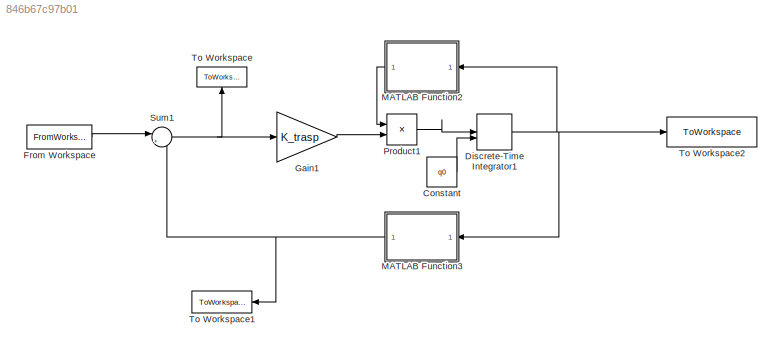
MODEL slx_846b67c97b01
KIND model
CONFIG AbsTol = auto
CONFIG EnableMultiTasking = off
CONFIG FixedStep = auto
CONFIG MaxStep = auto
CONFIG MinStep = auto
CONFIG RelTol = 1e-3
CONFIG SampleTimeConstraint = Unconstrained
CONFIG SolverName = VariableStepAuto
CONFIG StartTime = 0.0
CONFIG StopTime = 50
BLOCK [Constant] Constant
  Value = q0
BLOCK [DiscreteIntegrator] Discrete-Time Integrator1
  ICPrevOutput = DiscIntNeverNeededParam
  ICPrevScaledInput = DiscIntNeverNeededParam
  InitialCondition = q0
  InitialConditionSetting = Auto
  InitialConditionSource = external
  SampleTime = Tc
BLOCK [FromWorkspace] From Workspace
  SampleTime = Tc
  VariableName = xd
BLOCK [Gain] Gain1
  Gain = K_trasp
  Multiplication = Matrix(K*u) (u vector)
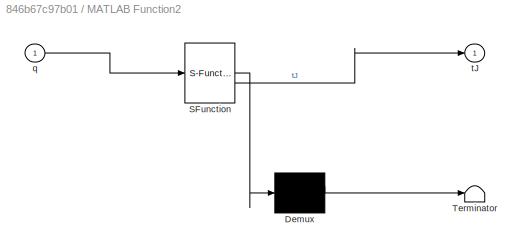
BLOCK [SubSystem] MATLAB Function2
  ErrorFcn = Stateflow.Translate.translate
  NameLocation = top
  PermitHierarchicalResolution = ExplicitOnly
  SFBlockType = MATLAB Function
  TreatAsAtomicUnit = on
BLOCK [Demux] MATLAB Function2/ Demux 
  Outputs = 1
BLOCK [S-Function] MATLAB Function2/ SFunction 
  EnableBusSupport = on
  FunctionName = sf_sfun
  PortCounts = [1 2]
  SFcnIsStateOwnerBlock = off
  SFunctionDeploymentMode = off
  Tag = Stateflow S-Function 3
BLOCK [Terminator] MATLAB Function2/ Terminator 
BLOCK [Inport] MATLAB Function2/q
BLOCK [Outport] MATLAB Function2/tJ
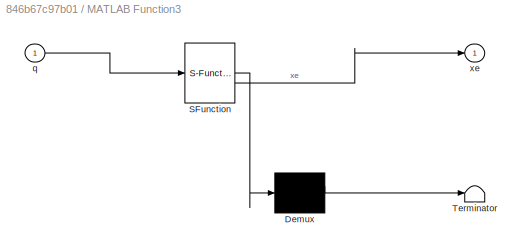
BLOCK [SubSystem] MATLAB Function3
  ErrorFcn = Stateflow.Translate.translate
  NameLocation = top
  PermitHierarchicalResolution = ExplicitOnly
  SFBlockType = MATLAB Function
  TreatAsAtomicUnit = on
BLOCK [Demux] MATLAB Function3/ Demux 
  Outputs = 1
BLOCK [S-Function] MATLAB Function3/ SFunction 
  EnableBusSupport = on
  FunctionName = sf_sfun
  PortCounts = [1 2]
  SFcnIsStateOwnerBlock = off
  SFunctionDeploymentMode = off
  Tag = Stateflow S-Function 4
BLOCK [Terminator] MATLAB Function3/ Terminator 
BLOCK [Inport] MATLAB Function3/q
BLOCK [Outport] MATLAB Function3/xe
BLOCK [Product] Product1
  Multiplication = Matrix(*)
BLOCK [Sum] Sum1
  Inputs = |+-
BLOCK [ToWorkspace] To Workspace
  FixptAsFi = on
  MaxDataPoints = inf
  NameLocation = right
  SampleTime = -1
  SaveFormat = Structure With Time
  VariableName = e_trasp
BLOCK [ToWorkspace] To Workspace1
  FixptAsFi = on
  MaxDataPoints = inf
  SampleTime = -1
  SaveFormat = Structure With Time
  VariableName = xe_trasp
BLOCK [ToWorkspace] To Workspace2
  FixptAsFi = on
  MaxDataPoints = inf
  SampleTime = -1
  SaveFormat = Structure With Time
  VariableName = q_trasp
LINE Constant:1 -> Discrete-Time Integrator1:2
NET Discrete-Time Integrator1:1 -> MATLAB Function2:1, MATLAB Function3:1, To Workspace2:1
LINE From Workspace:1 -> Sum1:1
LINE Gain1:1 -> Product1:2
LINE MATLAB Function2:1 -> Product1:1
NET MATLAB Function3:1 -> Sum1:2, To Workspace1:1
LINE Product1:1 -> Discrete-Time Integrator1:1
NET Sum1:1 -> Gain1:1, To Workspace:1
note: NET lines group one-source signal fan-out (src -> all destinations, sorted); 1:1 wires keep LINE
CHART MATLAB Function3 states=1 transitions=1
  STATE_LABEL 'eML_blk_kernel()'
  STATE_LABEL 'SCRIPT:\nfunction xe = dirkin(q)\na1=0.5;\na2=a1;\nd0=1;\n\n\nxe=[a1*cos(q(1))+a2*cos(q(1)+q(2));...\n    a1*sin(q(1))+a2*sin(q(1)+q(2));...\n    d0+q(3);...\n    q(1)+q(2)+q(4)];\nend\n'
CHART MATLAB Function2 states=1 transitions=1
  STATE_LABEL 'eML_blk_kernel()'
  STATE_LABEL "SCRIPT:\nfunction tJ=trasposta(q)\na1=0.5;\na2=a1;\n\nJ=[-a1*sin(q(1))-a2*sin(q(1)+q(2)),-a2*sin(q(1)+q(2)),0,0;...\n    a1*cos(q(1))+a2*cos(q(1)+q(2)),a2*cos(q(1)+q(2)),0,0;...\n    0,0,1,0;...\n    1,1,0,1];\ntJ=J';\nend\n\n\n"
CHART  states=0 transitions=0
CHART  states=0 transitions=0
